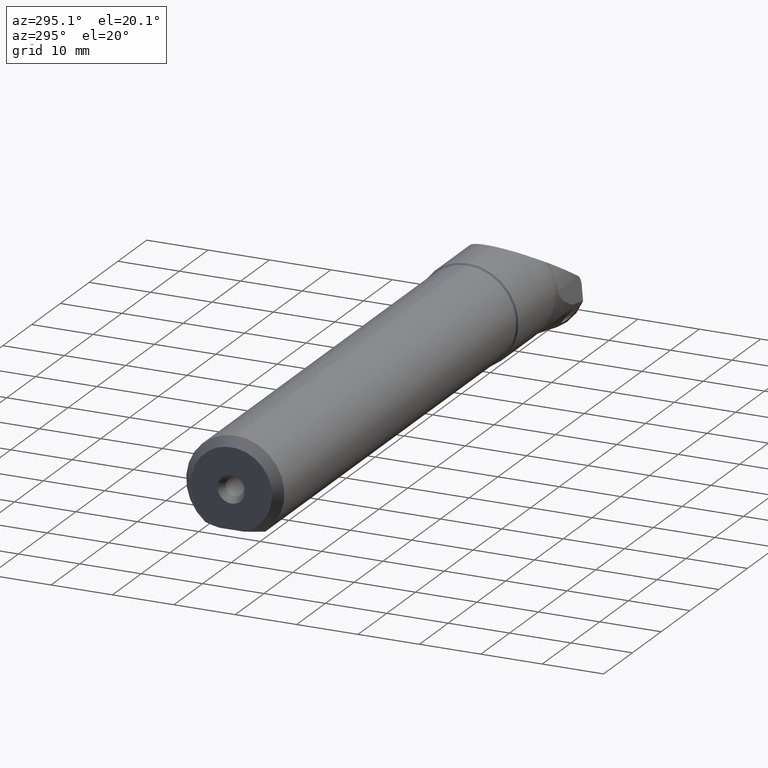
[diagram: clean part render]
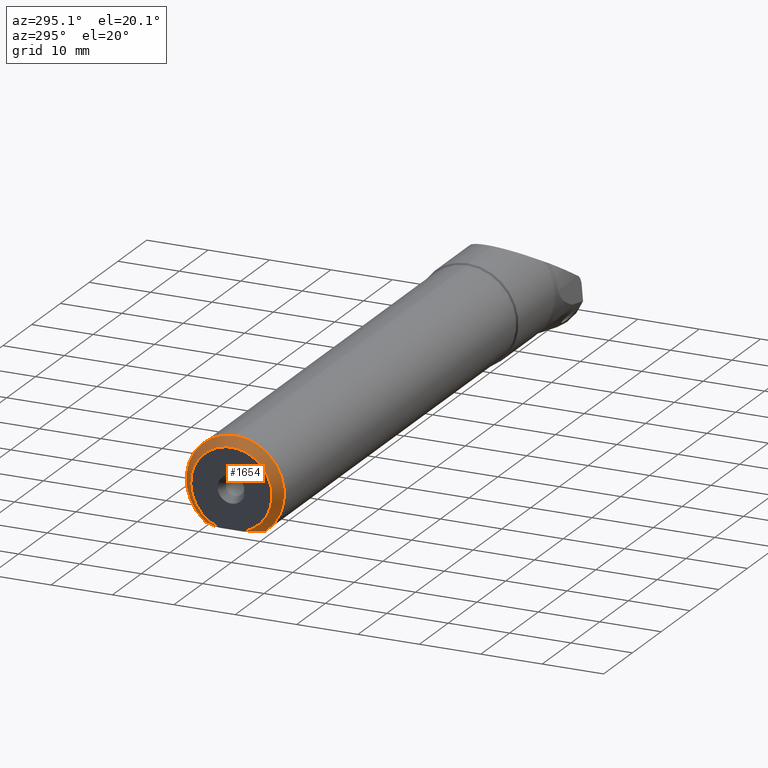
[diagram: same view with one face highlighted and labeled with its STEP entity id]
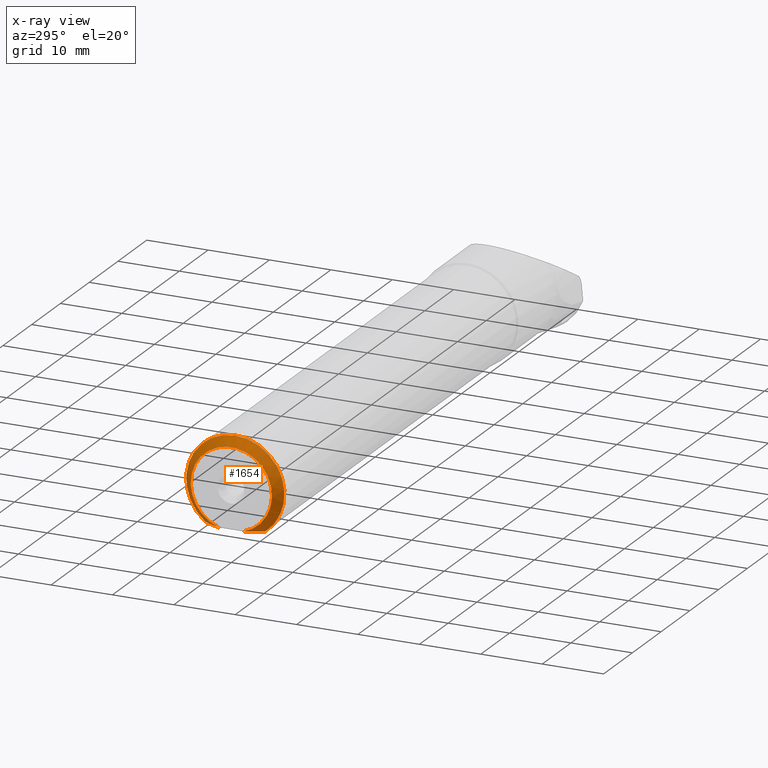
[diagram: x-ray of the same camera — body ghosted, the highlighted face saturated]
A machine part, auxiliary view. The second image highlights one B-rep face of the part: STEP entity #1654.
The next image is the same camera in x-ray: the body ghosted, the highlighted face saturated — about 0% of this face is hidden behind the body in this view.
In plain terms, the highlighted conical surface has half-angle 45 deg.
Its self-contained STEP definition (entity closure, byte-faithful):
#7 = CARTESIAN_POINT ( 'NONE',  ( 0.3664293082268642000, 2.977383853642348900, -6.330000000000009000 ) ) ;
#22 = CARTESIAN_POINT ( 'NONE',  ( 0.8271666447937402500, 3.955826550079630400, -6.330000000000009000 ) ) ;
#30 = CARTESIAN_POINT ( 'NONE',  ( 1.374999999999883200, 4.891942354525351500, -6.329999999999999200 ) ) ;
#156 = CARTESIAN_POINT ( 'NONE',  ( 6.938893903907228400E-015, -1.954923272151638700, -6.330000000000001800 ) ) ;
#213 = ORIENTED_EDGE ( 'NONE', *, *, #3723, .F. ) ;
#316 = CARTESIAN_POINT ( 'NONE',  ( 1.091603201812011400, 4.428491597914069500, -6.330000000000008100 ) ) ;
#489 = VERTEX_POINT ( 'NONE', #886 ) ;
#558 = ORIENTED_EDGE ( 'NONE', *, *, #1808, .T. ) ;
#605 = DIRECTION ( 'NONE',  ( -1.000000000000000000, -8.847089727481710000E-017, -5.551115123125779000E-017 ) ) ;
#651 = CARTESIAN_POINT ( 'NONE',  ( 1.093568054715782700, -4.431704804875853800, -6.330000000000009000 ) ) ;
#680 = DIRECTION ( 'NONE',  ( 2.775557561562890100E-017, 1.951563910473907100E-017, 1.000000000000000000 ) ) ;
#885 = CARTESIAN_POINT ( 'NONE',  ( 1.375000000000008200, 1.084202172485504400E-016, 3.469446951953614200E-015 ) ) ;
#886 = CARTESIAN_POINT ( 'NONE',  ( 0.0000000000000000000, 1.954923272151637400, -6.330000000000001800 ) ) ;
#888 = B_SPLINE_CURVE_WITH_KNOTS ( 'NONE', 3,
 ( #30, #316, #22, #3504, #7, #2369, #3515, #2970 ),
 .UNSPECIFIED., .F., .F.,
 ( 4, 2, 2, 4 ),
 ( 0.01507813343816638900, 0.01670220408415135400, 0.01751423940714383700, 0.01832627473013631900 ),
 .UNSPECIFIED. ) ;
#970 = CARTESIAN_POINT ( 'NONE',  ( 0.07718137318273916900, -2.216481669158558700, -6.330000000000007200 ) ) ;
#1048 = CONICAL_SURFACE ( 'NONE', #2972, 8.000000000000003600, 0.7853981633974466100 ) ;
#1071 = DIRECTION ( 'NONE',  ( -2.710505431213759900E-017, -1.951563910473907100E-017, -1.000000000000000000 ) ) ;
#1085 = DIRECTION ( 'NONE',  ( 1.000000000000000000, 8.847089727481710000E-017, 5.551115123125779000E-017 ) ) ;
#1088 = FACE_OUTER_BOUND ( 'NONE', #2862, .T. ) ;
#1157 = B_SPLINE_CURVE_WITH_KNOTS ( 'NONE', 3,
 ( #1820, #970, #2127, #1538, #1220, #3593, #651, #1844 ),
 .UNSPECIFIED., .F., .F.,
 ( 4, 2, 2, 4 ),
 ( 0.02229893648371487900, 0.02311629452134839100, 0.02393365255898189900, 0.02556836863424891800 ),
 .UNSPECIFIED. ) ;
#1220 = CARTESIAN_POINT ( 'NONE',  ( 0.4785141216165130800, -3.230572659477672900, -6.330000000000008100 ) ) ;
#1364 = ORIENTED_EDGE ( 'NONE', *, *, #2086, .T. ) ;
#1446 = CARTESIAN_POINT ( 'NONE',  ( 1.374999999999883200, 4.891942354525351500, -6.329999999999999200 ) ) ;
#1538 = CARTESIAN_POINT ( 'NONE',  ( 0.3687095939735552900, -2.982806953512131500, -6.330000000000006300 ) ) ;
#1654 = ADVANCED_FACE ( 'NONE', ( #1088 ), #1048, .T. ) ;
#1698 = CARTESIAN_POINT ( 'NONE',  ( 1.375000000000001300, -4.891942354525451900, -6.330000000000002700 ) ) ;
#1808 = EDGE_CURVE ( 'NONE', #2700, #2759, #1157, .T. ) ;
#1820 = CARTESIAN_POINT ( 'NONE',  ( 6.938893903907228400E-015, -1.954923272151638700, -6.330000000000001800 ) ) ;
#1844 = CARTESIAN_POINT ( 'NONE',  ( 1.375000000000001300, -4.891942354525451900, -6.330000000000002700 ) ) ;
#2073 = DIRECTION ( 'NONE',  ( 2.710505431213759900E-017, 1.951563910473907100E-017, 1.000000000000000000 ) ) ;
#2086 = EDGE_CURVE ( 'NONE', #3534, #489, #888, .T. ) ;
#2127 = CARTESIAN_POINT ( 'NONE',  ( 0.1681810026367814300, -2.476382759524003300, -6.330000000000008100 ) ) ;
#2284 = CIRCLE ( 'NONE', #3475, 6.625000000000008000 ) ;
#2369 = CARTESIAN_POINT ( 'NONE',  ( 0.1670225403639865600, 2.473115652129732400, -6.330000000000009800 ) ) ;
#2410 = DIRECTION ( 'NONE',  ( -1.000000000000000000, -8.847089727481710000E-017, -5.551115123125779000E-017 ) ) ;
#2418 = CARTESIAN_POINT ( 'NONE',  ( 0.0000000000000000000, 0.0000000000000000000, 0.0000000000000000000 ) ) ;
#2700 = VERTEX_POINT ( 'NONE', #156 ) ;
#2759 = VERTEX_POINT ( 'NONE', #1698 ) ;
#2862 = EDGE_LOOP ( 'NONE', ( #3769, #1364, #213, #558 ) ) ;
#2970 = CARTESIAN_POINT ( 'NONE',  ( 0.0000000000000000000, 1.954923272151637400, -6.330000000000001800 ) ) ;
#2972 = AXIS2_PLACEMENT_3D ( 'NONE', #3127, #1085, #1071 ) ;
#3127 = CARTESIAN_POINT ( 'NONE',  ( 1.375000000000008200, 1.084202172485504400E-016, 3.469446951953614200E-015 ) ) ;
#3475 = AXIS2_PLACEMENT_3D ( 'NONE', #2418, #2410, #680 ) ;
#3504 = CARTESIAN_POINT ( 'NONE',  ( 0.4758769125322844200, 3.224782461665978200, -6.330000000000007200 ) ) ;
#3515 = CARTESIAN_POINT ( 'NONE',  ( 0.07675905705311664200, 2.215050490555105200, -6.330000000000009800 ) ) ;
#3534 = VERTEX_POINT ( 'NONE', #1446 ) ;
#3555 = CIRCLE ( 'NONE', #3746, 8.000000000000003600 ) ;
#3593 = CARTESIAN_POINT ( 'NONE',  ( 0.8300607089223494000, -3.961234340752406400, -6.330000000000009000 ) ) ;
#3649 = EDGE_CURVE ( 'NONE', #2759, #3534, #3555, .T. ) ;
#3723 = EDGE_CURVE ( 'NONE', #2700, #489, #2284, .T. ) ;
#3746 = AXIS2_PLACEMENT_3D ( 'NONE', #885, #605, #2073 ) ;
#3769 = ORIENTED_EDGE ( 'NONE', *, *, #3649, .T. ) ;